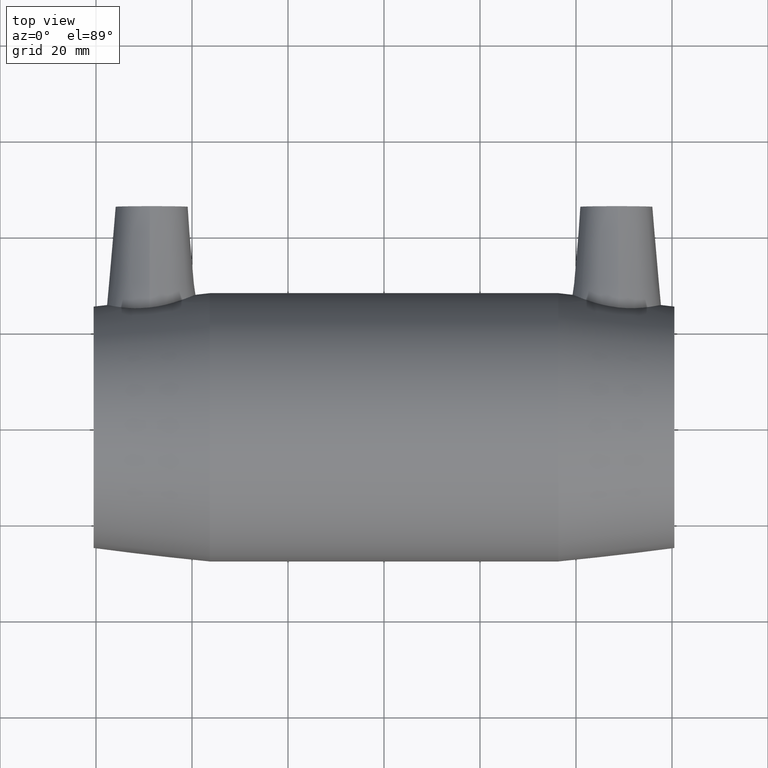
[diagram: clean part render]
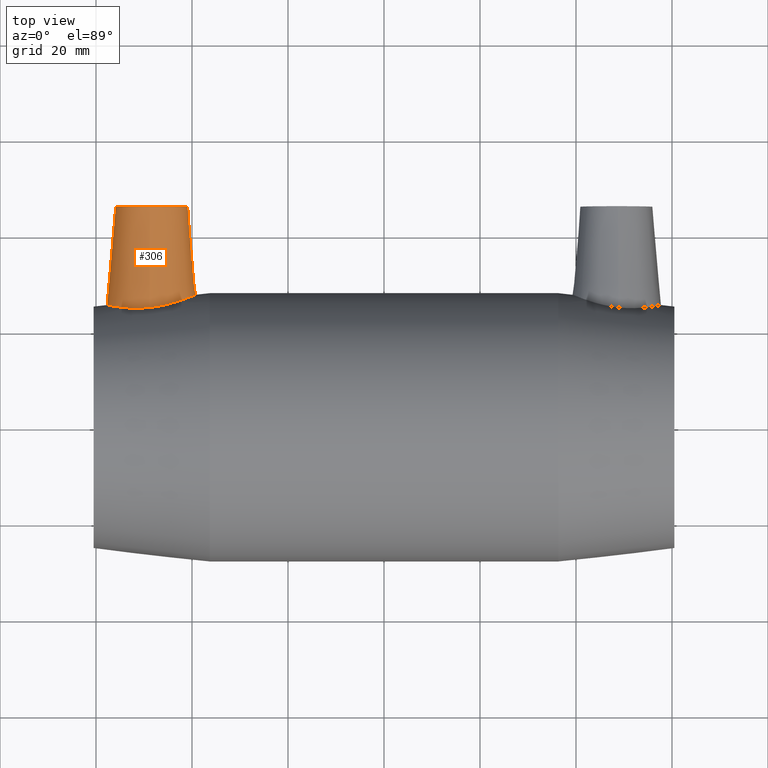
[diagram: same view with one face highlighted and labeled with its STEP entity id]
A machine part, top view. The second image highlights one B-rep face of the part: STEP entity #306.
In plain terms, the highlighted conical surface has half-angle 5 deg.
Its self-contained STEP definition (entity closure, byte-faithful):
#16=B_SPLINE_CURVE_WITH_KNOTS('',3,(#558,#559,#560,#561,#562,#563,#564,
#565,#566,#567,#568,#569,#570,#571,#572,#573,#574,#575,#576,#577,#578,#579,
#580,#581,#582,#583,#584,#585,#586,#587,#588,#589,#590,#591),
 .UNSPECIFIED.,.T.,.F.,(4,2,2,2,2,2,2,2,2,2,2,2,2,2,2,2,4),(0.,0.339603438299074,
0.679206876598148,1.02210238213272,1.3649978876673,1.70789339320187,2.05078889873644,
2.39039233703552,2.72999577533459,3.10117431449301,3.47235285365142,3.83379386543074,
4.19523487721006,4.55667588898938,4.9181169007687,5.28929543992711,5.66047397908553),
 .UNSPECIFIED.);
#18=CONICAL_SURFACE('',#346,7.5,5.);
#32=FACE_BOUND('',#110,.T.);
#72=FACE_OUTER_BOUND('',#109,.T.);
#109=EDGE_LOOP('',(#247));
#110=EDGE_LOOP('',(#248));
#153=CIRCLE('',#342,7.5);
#179=VERTEX_POINT('',#515);
#182=VERTEX_POINT('',#557);
#207=EDGE_CURVE('',#179,#179,#153,.T.);
#210=EDGE_CURVE('',#182,#182,#16,.T.);
#247=ORIENTED_EDGE('',*,*,#207,.T.);
#248=ORIENTED_EDGE('',*,*,#210,.F.);
#306=ADVANCED_FACE('',(#72,#32),#18,.T.);
#342=AXIS2_PLACEMENT_3D('',#516,#415,#416);
#346=AXIS2_PLACEMENT_3D('',#556,#423,#424);
#415=DIRECTION('center_axis',(0.,-1.,0.));
#416=DIRECTION('ref_axis',(1.,0.,0.));
#423=DIRECTION('center_axis',(0.,-1.,0.));
#424=DIRECTION('ref_axis',(1.,0.,0.));
#515=CARTESIAN_POINT('',(-55.9,46.,9.18485099360515E-16));
#516=CARTESIAN_POINT('Origin',(-48.4,46.,0.));
#556=CARTESIAN_POINT('Origin',(-48.4,46.,0.));
#557=CARTESIAN_POINT('',(-48.8687231920942,24.8488613427775,9.33872933319037));
#558=CARTESIAN_POINT('Ctrl Pts',(-48.8687231920942,24.8488613427775,9.33872933319037));
#559=CARTESIAN_POINT('Ctrl Pts',(-49.9932327363166,24.7270698323445,9.29295749940994));
#560=CARTESIAN_POINT('Ctrl Pts',(-51.1876558797475,24.6855027336689,9.02033526141007));
#561=CARTESIAN_POINT('Ctrl Pts',(-53.3680510269304,24.7632200259814,8.02051394988669));
#562=CARTESIAN_POINT('Ctrl Pts',(-54.3543913180313,24.8769173756693,7.29369161905948));
#563=CARTESIAN_POINT('Ctrl Pts',(-55.9080239439911,25.1172166854198,5.64927960050204));
#564=CARTESIAN_POINT('Ctrl Pts',(-56.5807740549452,25.260136916309,4.61546910202437));
#565=CARTESIAN_POINT('Ctrl Pts',(-57.4725405737281,25.4659047098988,2.36253806217643));
#566=CARTESIAN_POINT('Ctrl Pts',(-57.6913330338332,25.5249697316226,1.14298501844858));
#567=CARTESIAN_POINT('Ctrl Pts',(-57.6913330338332,25.5249697316226,-1.14298501844858));
#568=CARTESIAN_POINT('Ctrl Pts',(-57.4725405737281,25.4659047098988,-2.36253806217644));
#569=CARTESIAN_POINT('Ctrl Pts',(-56.5807740549452,25.260136916309,-4.61546910202437));
#570=CARTESIAN_POINT('Ctrl Pts',(-55.9080239439911,25.1172166854198,-5.64927960050204));
#571=CARTESIAN_POINT('Ctrl Pts',(-54.3543913180313,24.8769173756693,-7.29369161905948));
#572=CARTESIAN_POINT('Ctrl Pts',(-53.3680510269304,24.7632200259814,-8.02051394988669));
#573=CARTESIAN_POINT('Ctrl Pts',(-51.1876558797475,24.6855027336689,-9.02033526141007));
#574=CARTESIAN_POINT('Ctrl Pts',(-49.9932327363166,24.7270698323445,-9.29295749940994));
#575=CARTESIAN_POINT('Ctrl Pts',(-47.6396608127947,24.9819765878729,-9.38875686672275));
#576=CARTESIAN_POINT('Ctrl Pts',(-46.3441327618656,25.2261095246299,-9.17650416865128));
#577=CARTESIAN_POINT('Ctrl Pts',(-43.9772977431647,25.8351384318358,-8.23920271860788));
#578=CARTESIAN_POINT('Ctrl Pts',(-42.9041725893513,26.1939474721493,-7.51480095567409));
#579=CARTESIAN_POINT('Ctrl Pts',(-41.2302186279011,26.8130955823555,-5.84800281370046));
#580=CARTESIAN_POINT('Ctrl Pts',(-40.5067845454804,27.1169688101338,-4.79979146955379));
#581=CARTESIAN_POINT('Ctrl Pts',(-39.5387188253421,27.5390624666877,-2.47870325942681));
#582=CARTESIAN_POINT('Ctrl Pts',(-39.2948878393217,27.6534840516487,-1.20480337259774));
#583=CARTESIAN_POINT('Ctrl Pts',(-39.2948878393217,27.6534840516487,1.20480337259773));
#584=CARTESIAN_POINT('Ctrl Pts',(-39.5387188253421,27.5390624666877,2.4787032594268));
#585=CARTESIAN_POINT('Ctrl Pts',(-40.5067845454804,27.1169688101338,4.79979146955379));
#586=CARTESIAN_POINT('Ctrl Pts',(-41.2302186279011,26.8130955823555,5.84800281370046));
#587=CARTESIAN_POINT('Ctrl Pts',(-42.9041725893513,26.1939474721493,7.51480095567409));
#588=CARTESIAN_POINT('Ctrl Pts',(-43.9772977431647,25.8351384318358,8.23920271860789));
#589=CARTESIAN_POINT('Ctrl Pts',(-46.3441327618656,25.2261095246299,9.17650416865128));
#590=CARTESIAN_POINT('Ctrl Pts',(-47.6396608127947,24.9819765878729,9.38875686672275));
#591=CARTESIAN_POINT('Ctrl Pts',(-48.8687231920942,24.8488613427775,9.33872933319036));